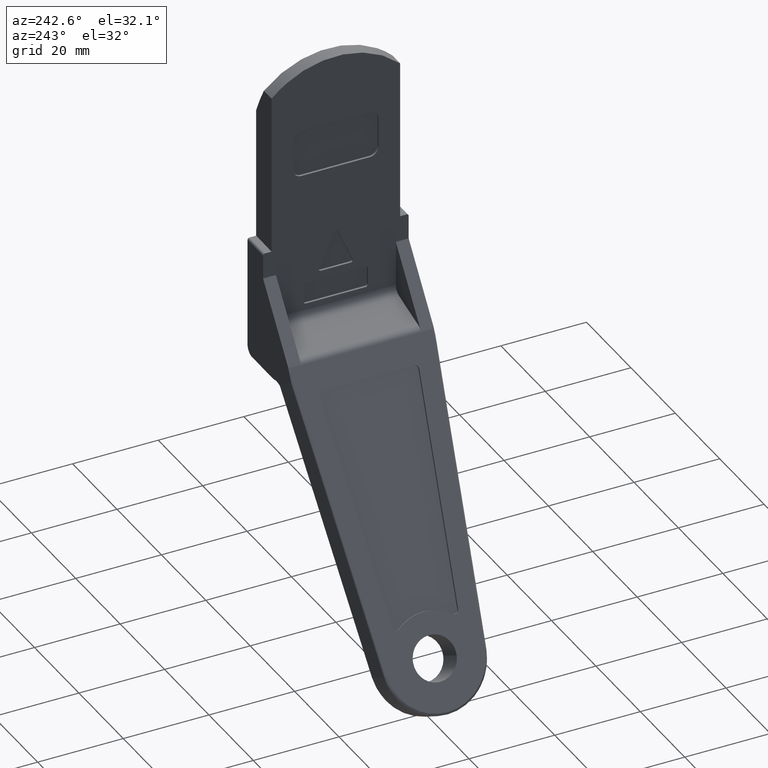
[diagram: clean part render]
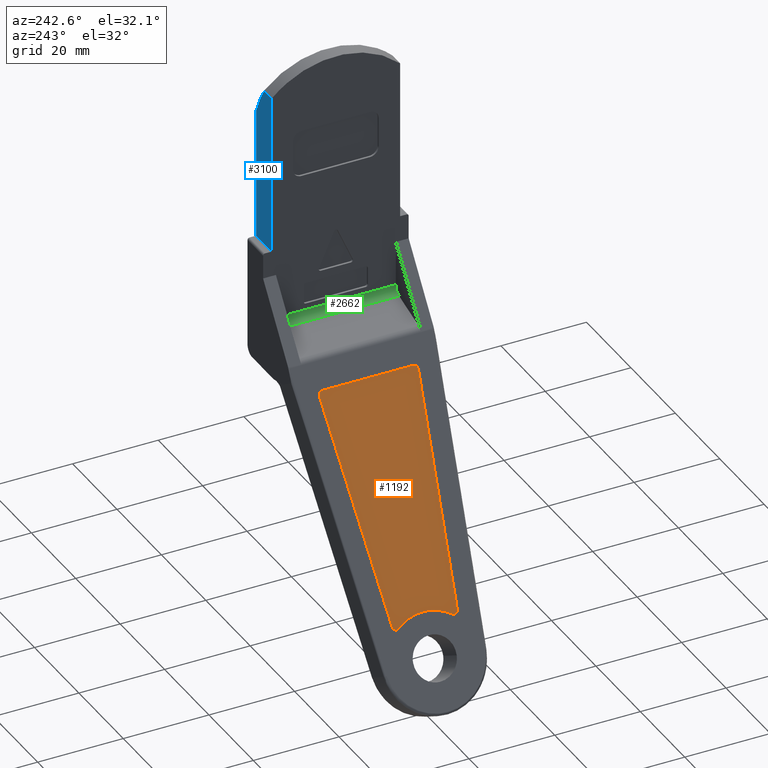
[diagram: same view with three faces highlighted in distinct colors, each labeled with its STEP entity id]
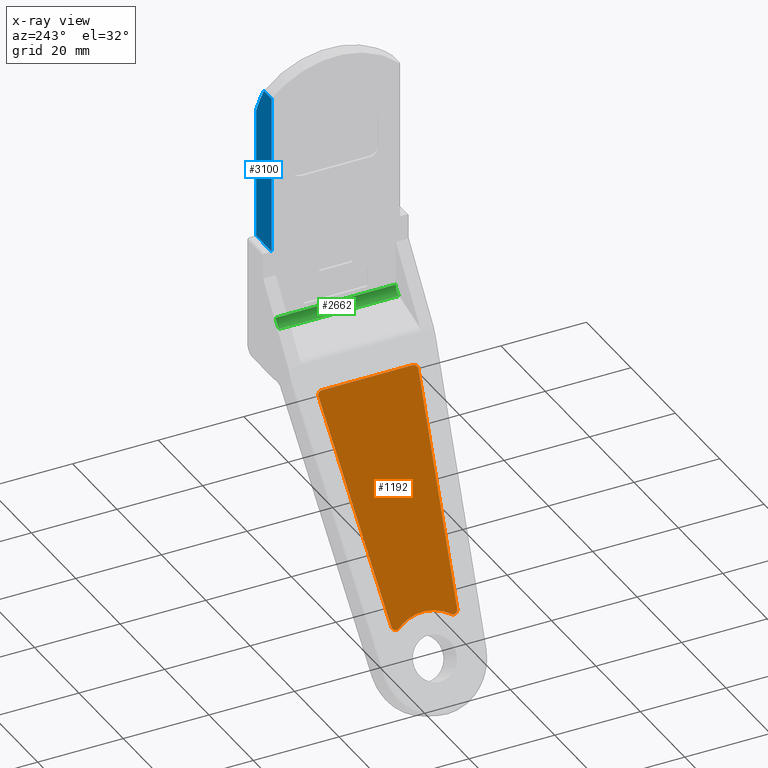
[diagram: x-ray of the same camera — body ghosted, the three highlighted faces saturated]
A machine part, auxiliary view with three faces highlighted in distinct colors.
The next image is the same camera in x-ray (body ghosted, the three faces saturated) — at least one of them is partly hidden behind the body in this view.
Their STEP definitions:

[orange] entity #1192 — the highlighted face is a freeform B-spline surface patch.
#1081=CARTESIAN_POINT('',(-12.823470612814781,-12.831469483781641,-47.086546977671112));
#1082=CARTESIAN_POINT('',(-41.574886471423383,-12.831469483781641,-96.885460034345584));
#1083=CARTESIAN_POINT('',(-12.823470612814781,12.831470318219241,-47.086546977671112));
#1084=CARTESIAN_POINT('',(-41.574886471423383,12.831470318219241,-96.885460034345570));
#1085=B_SPLINE_SURFACE_WITH_KNOTS('',1,1,((#1081,#1083),(#1082,#1084)),.UNSPECIFIED.,.F.,.F.,.U.,(2,2),(2,2),(0.0,57.502831717236980),(0.0,25.662939802000881),.UNSPECIFIED.);
#1086=CARTESIAN_POINT('',(-39.808490611509612,-7.702407870809769,-93.825972658693999));
#1087=VERTEX_POINT('',#1086);
#1088=CARTESIAN_POINT('',(-14.668430977618939,-11.663223935919200,-50.282112067463999));
#1089=VERTEX_POINT('',#1088);
#1090=CARTESIAN_POINT('',(-39.808490611509612,-7.702407870809769,-93.825972658693999));
#1091=CARTESIAN_POINT('',(-14.668430977618939,-11.663223935919200,-50.282112067463999));
#1092=QUASI_UNIFORM_CURVE('',1,(#1090,#1091),.UNSPECIFIED.,.F.,.U.);
#1093=EDGE_CURVE('',#1087,#1089,#1092,.T.);
#1094=ORIENTED_EDGE('',*,*,#1093,.T.);
#1095=CARTESIAN_POINT('',(-14.129165124597280,-10.666312319402360,-49.348076211242699));
#1096=VERTEX_POINT('',#1095);
#1097=CARTESIAN_POINT('',(-14.668430977619080,-11.663223935919200,-50.282112067463920));
#1098=CARTESIAN_POINT('',(-14.450391121722822,-11.697576112351761,-49.904455958976442));
#1099=CARTESIAN_POINT('',(-14.289778123160030,-11.400659548594509,-49.626266085109563));
#1100=CARTESIAN_POINT('',(-14.129165124597225,-11.103742984837258,-49.348076211242685));
#1101=CARTESIAN_POINT('',(-14.129165124597270,-10.666312319402360,-49.348076211242763));
#1109=(BOUNDED_CURVE()B_SPLINE_CURVE(2,(#1097,#1098,#1099,#1100,#1101),.UNSPECIFIED.,.F.,.U.)B_SPLINE_CURVE_WITH_KNOTS((3,2,3),(0.0,0.500000000000000,1.0),.UNSPECIFIED.)CURVE()GEOMETRIC_REPRESENTATION_ITEM()RATIONAL_B_SPLINE_CURVE((1.0,0.916180659824861,1.0,0.916180659824861,1.0))REPRESENTATION_ITEM(''));
#1110=EDGE_CURVE('',#1089,#1096,#1109,.T.);
#1111=ORIENTED_EDGE('',*,*,#1110,.T.);
#1112=CARTESIAN_POINT('',(-14.129165124599281,10.666312319401239,-49.348076211246401));
#1113=VERTEX_POINT('',#1112);
#1114=CARTESIAN_POINT('',(-14.129165124597280,-10.666312319402360,-49.348076211242699));
#1115=CARTESIAN_POINT('',(-14.129165124599281,10.666312319401239,-49.348076211246401));
#1116=QUASI_UNIFORM_CURVE('',1,(#1114,#1115),.UNSPECIFIED.,.F.,.U.);
#1117=EDGE_CURVE('',#1096,#1113,#1116,.T.);
#1118=ORIENTED_EDGE('',*,*,#1117,.T.);
#1119=CARTESIAN_POINT('',(-14.668430977621259,11.663223935917619,-50.282112067467899));
#1120=VERTEX_POINT('',#1119);
#1121=CARTESIAN_POINT('',(-14.129165124599171,10.666312319401239,-49.348076211246358));
#1122=CARTESIAN_POINT('',(-14.129165124599222,11.103742984836146,-49.348076211246443));
#1123=CARTESIAN_POINT('',(-14.289778123162090,11.400659548593261,-49.626266085113450));
#1124=CARTESIAN_POINT('',(-14.450391121724964,11.697576112350369,-49.904455958980442));
#1125=CARTESIAN_POINT('',(-14.668430977621210,11.663223935917610,-50.282112067467921));
#1133=(BOUNDED_CURVE()B_SPLINE_CURVE(2,(#1121,#1122,#1123,#1124,#1125),.UNSPECIFIED.,.F.,.U.)B_SPLINE_CURVE_WITH_KNOTS((3,2,3),(0.0,0.500000000000000,1.0),.UNSPECIFIED.)CURVE()GEOMETRIC_REPRESENTATION_ITEM()RATIONAL_B_SPLINE_CURVE((1.0,0.916180659824858,1.0,0.916180659824858,1.0))REPRESENTATION_ITEM(''));
#1134=EDGE_CURVE('',#1113,#1120,#1133,.T.);
#1135=ORIENTED_EDGE('',*,*,#1134,.T.);
#1136=CARTESIAN_POINT('',(-39.808490611511253,7.702407870787360,-93.825972658696799));
#1137=VERTEX_POINT('',#1136);
#1138=CARTESIAN_POINT('',(-14.668430977621259,11.663223935917619,-50.282112067467899));
#1139=CARTESIAN_POINT('',(-39.808490611511253,7.702407870787360,-93.825972658696799));
#1140=QUASI_UNIFORM_CURVE('',1,(#1138,#1139),.UNSPECIFIED.,.F.,.U.);
#1141=EDGE_CURVE('',#1120,#1137,#1140,.T.);
#1142=ORIENTED_EDGE('',*,*,#1141,.T.);
#1143=CARTESIAN_POINT('',(-40.165582973588862,6.095905685699591,-94.444474772810210));
#1144=VERTEX_POINT('',#1143);
#1145=CARTESIAN_POINT('',(-39.808490611511203,7.702407870787409,-93.825972658696827));
#1146=CARTESIAN_POINT('',(-40.105204792196659,7.655660555517405,-94.339896694970449));
#1147=CARTESIAN_POINT('',(-40.226111135611312,7.111721996438420,-94.549312624722077));
#1148=CARTESIAN_POINT('',(-40.347017479025943,6.567783437359437,-94.758728554473720));
#1149=CARTESIAN_POINT('',(-40.165582973588819,6.095905685699527,-94.444474772810310));
#1157=(BOUNDED_CURVE()B_SPLINE_CURVE(2,(#1145,#1146,#1147,#1148,#1149),.UNSPECIFIED.,.F.,.U.)B_SPLINE_CURVE_WITH_KNOTS((3,2,3),(0.0,0.500000000000000,1.0),.UNSPECIFIED.)CURVE()GEOMETRIC_REPRESENTATION_ITEM()RATIONAL_B_SPLINE_CURVE((1.0,0.859282053409342,1.0,0.859282053409342,1.0))REPRESENTATION_ITEM(''));
#1158=EDGE_CURVE('',#1137,#1144,#1157,.T.);
#1159=ORIENTED_EDGE('',*,*,#1158,.T.);
#1160=CARTESIAN_POINT('',(-40.165582973587497,-6.095905685722171,-94.444474772808206));
#1161=VERTEX_POINT('',#1160);
#1162=CARTESIAN_POINT('',(-40.165582973587561,-6.095905685722167,-94.444474772808178));
#1163=CARTESIAN_POINT('',(-37.821739405233657,-1.036742E-011,-90.384818627423840));
#1164=CARTESIAN_POINT('',(-40.165582973588812,6.095905685699518,-94.444474772810338));
#1172=(BOUNDED_CURVE()B_SPLINE_CURVE(2,(#1162,#1163,#1164),.UNSPECIFIED.,.F.,.U.)CURVE()GEOMETRIC_REPRESENTATION_ITEM()QUASI_UNIFORM_CURVE()RATIONAL_B_SPLINE_CURVE((1.0,0.792716430200095,1.0))REPRESENTATION_ITEM(''));
#1173=EDGE_CURVE('',#1161,#1144,#1172,.T.);
#1174=ORIENTED_EDGE('',*,*,#1173,.F.);
#1175=CARTESIAN_POINT('',(-40.165582973587732,-6.095905685722164,-94.444474772808078));
#1176=CARTESIAN_POINT('',(-40.347017479024750,-6.567783437382258,-94.758728554471290));
#1177=CARTESIAN_POINT('',(-40.226111135609983,-7.111721996461149,-94.549312624719434));
#1178=CARTESIAN_POINT('',(-40.105204792195202,-7.655660555540041,-94.339896694967578));
#1179=CARTESIAN_POINT('',(-39.808490611509733,-7.702407870809767,-93.825972658693928));
#1187=(BOUNDED_CURVE()B_SPLINE_CURVE(2,(#1175,#1176,#1177,#1178,#1179),.UNSPECIFIED.,.F.,.U.)B_SPLINE_CURVE_WITH_KNOTS((3,2,3),(0.0,0.500000000000000,1.0),.UNSPECIFIED.)CURVE()GEOMETRIC_REPRESENTATION_ITEM()RATIONAL_B_SPLINE_CURVE((1.0,0.859282053409341,1.0,0.859282053409341,1.0))REPRESENTATION_ITEM(''));
#1188=EDGE_CURVE('',#1161,#1087,#1187,.T.);
#1189=ORIENTED_EDGE('',*,*,#1188,.T.);
#1190=EDGE_LOOP('',(#1094,#1111,#1118,#1135,#1142,#1159,#1174,#1189));
#1191=FACE_OUTER_BOUND('',#1190,.T.);
#1192=ADVANCED_FACE('',(#1191),#1085,.F.);

[blue] entity #3100 — the highlighted face is a freeform B-spline surface patch.
#2895=CARTESIAN_POINT('',(6.999999999999901,15.0,-21.999999999891902));
#2896=VERTEX_POINT('',#2895);
#2903=CARTESIAN_POINT('',(0.0,15.0,-21.999999999891902));
#2904=VERTEX_POINT('',#2903);
#2910=CARTESIAN_POINT('',(6.999999999999901,15.0,-21.999999999891902));
#2911=CARTESIAN_POINT('',(0.0,15.0,-21.999999999891902));
#2912=QUASI_UNIFORM_CURVE('',1,(#2910,#2911),.UNSPECIFIED.,.F.,.U.);
#2913=EDGE_CURVE('',#2896,#2904,#2912,.T.);
#2960=CARTESIAN_POINT('',(3.500000000194680,15.0,15.402921800857500));
#2961=VERTEX_POINT('',#2960);
#2994=CARTESIAN_POINT('',(6.999999999999890,15.0,8.676950673318538));
#2995=VERTEX_POINT('',#2994);
#3011=CARTESIAN_POINT('',(3.500000000194684,15.0,15.402921800857509));
#3012=CARTESIAN_POINT('',(3.824746289692618,15.0,14.862707574802750));
#3013=CARTESIAN_POINT('',(4.143518249869392,15.0,14.318667180658750));
#3014=CARTESIAN_POINT('',(4.766307243732900,15.0,13.221136824752270));
#3015=CARTESIAN_POINT('',(5.070333198622839,15.0,12.667652576438300));
#3016=CARTESIAN_POINT('',(5.659975148826365,15.0,11.548893702000781));
#3017=CARTESIAN_POINT('',(5.945603501924627,15.0,10.983626990231929));
#3018=CARTESIAN_POINT('',(6.356614550278786,15.0,10.124563196261080));
#3019=CARTESIAN_POINT('',(6.490614117909919,15.0,9.836505076368587));
#3020=CARTESIAN_POINT('',(6.751018840966748,15.0,9.258549258151566));
#3021=CARTESIAN_POINT('',(6.877546054212417,15.000000000000011,8.968399411156987));
#3022=CARTESIAN_POINT('',(6.999999999999914,15.0,8.676950673318546));
#3023=B_SPLINE_CURVE_WITH_KNOTS('',3,(#3011,#3012,#3013,#3014,#3015,#3016,#3017,#3018,#3019,#3020,#3021,#3022),.UNSPECIFIED.,.F.,.U.,(4,2,2,2,2,4),(0.0,0.250000000000000,0.500000000000000,0.750000000000000,0.875000000000000,1.0),.UNSPECIFIED.);
#3024=EDGE_CURVE('',#2961,#2995,#3023,.T.);
#3041=CARTESIAN_POINT('',(6.999999999999901,15.0,-21.999999999891902));
#3042=CARTESIAN_POINT('',(6.999999999999890,15.0,8.676950673318538));
#3043=QUASI_UNIFORM_CURVE('',1,(#3041,#3042),.UNSPECIFIED.,.F.,.U.);
#3044=EDGE_CURVE('',#2896,#2995,#3043,.T.);
#3078=CARTESIAN_POINT('',(-0.349649986432637,15.0,17.271197672310809));
#3079=CARTESIAN_POINT('',(-0.349649986432637,15.0,-23.868276874569759));
#3080=CARTESIAN_POINT('',(7.349650174187168,15.0,17.271197672310809));
#3081=CARTESIAN_POINT('',(7.349650174187168,15.0,-23.868276874569759));
#3082=B_SPLINE_SURFACE_WITH_KNOTS('',1,1,((#3078,#3080),(#3079,#3081)),.UNSPECIFIED.,.F.,.F.,.U.,(2,2),(2,2),(0.0,41.139474546880571),(0.0,7.699300160619806),.UNSPECIFIED.);
#3083=CARTESIAN_POINT('',(0.0,15.0,15.402921800857500));
#3084=VERTEX_POINT('',#3083);
#3085=CARTESIAN_POINT('',(3.500000000194680,15.0,15.402921800857500));
#3086=CARTESIAN_POINT('',(0.0,15.0,15.402921800857500));
#3087=QUASI_UNIFORM_CURVE('',1,(#3085,#3086),.UNSPECIFIED.,.F.,.U.);
#3088=EDGE_CURVE('',#2961,#3084,#3087,.T.);
#3089=ORIENTED_EDGE('',*,*,#3088,.F.);
#3090=ORIENTED_EDGE('',*,*,#3024,.T.);
#3091=ORIENTED_EDGE('',*,*,#3044,.F.);
#3092=ORIENTED_EDGE('',*,*,#2913,.T.);
#3093=CARTESIAN_POINT('',(0.0,15.0,-21.999999999891902));
#3094=CARTESIAN_POINT('',(0.0,15.0,15.402921800857500));
#3095=QUASI_UNIFORM_CURVE('',1,(#3093,#3094),.UNSPECIFIED.,.F.,.U.);
#3096=EDGE_CURVE('',#2904,#3084,#3095,.T.);
#3097=ORIENTED_EDGE('',*,*,#3096,.T.);
#3098=EDGE_LOOP('',(#3089,#3090,#3091,#3092,#3097));
#3099=FACE_OUTER_BOUND('',#3098,.T.);
#3100=ADVANCED_FACE('',(#3099),#3082,.F.);

[green] entity #2662 — the highlighted face is a freeform B-spline surface patch.
#2514=CARTESIAN_POINT('',(0.0,-14.0,-38.470898426035099));
#2515=VERTEX_POINT('',#2514);
#2521=CARTESIAN_POINT('',(-1.475604726710656,-14.0,-40.400926818922599));
#2522=VERTEX_POINT('',#2521);
#2523=CARTESIAN_POINT('',(-1.475604726710664,-14.0,-40.400926818922571));
#2524=CARTESIAN_POINT('',(0.0,-14.000000000000004,-40.000000000031164));
#2525=CARTESIAN_POINT('',(0.0,-14.0,-38.470898426035099));
#2533=(BOUNDED_CURVE()B_SPLINE_CURVE(2,(#2523,#2524,#2525),.UNSPECIFIED.,.F.,.U.)CURVE()GEOMETRIC_REPRESENTATION_ITEM()QUASI_UNIFORM_CURVE()RATIONAL_B_SPLINE_CURVE((1.0,0.794417282240470,1.0))REPRESENTATION_ITEM(''));
#2534=EDGE_CURVE('',#2522,#2515,#2533,.T.);
#2588=CARTESIAN_POINT('',(-1.475604726710656,14.0,-40.400926818922599));
#2589=VERTEX_POINT('',#2588);
#2595=CARTESIAN_POINT('',(0.0,14.0,-38.470898426035099));
#2596=VERTEX_POINT('',#2595);
#2597=CARTESIAN_POINT('',(-1.475604726710664,14.0,-40.400926818922571));
#2598=CARTESIAN_POINT('',(0.0,14.000000000000004,-40.000000000031164));
#2599=CARTESIAN_POINT('',(0.0,14.0,-38.470898426035099));
#2607=(BOUNDED_CURVE()B_SPLINE_CURVE(2,(#2597,#2598,#2599),.UNSPECIFIED.,.F.,.U.)CURVE()GEOMETRIC_REPRESENTATION_ITEM()QUASI_UNIFORM_CURVE()RATIONAL_B_SPLINE_CURVE((1.0,0.794417282240470,1.0))REPRESENTATION_ITEM(''));
#2608=EDGE_CURVE('',#2589,#2596,#2607,.T.);
#2624=CARTESIAN_POINT('',(-1.475604726710656,14.0,-40.400926818922599));
#2625=CARTESIAN_POINT('',(-1.475604726710656,-14.0,-40.400926818922599));
#2626=QUASI_UNIFORM_CURVE('',1,(#2624,#2625),.UNSPECIFIED.,.F.,.U.);
#2627=EDGE_CURVE('',#2589,#2522,#2626,.T.);
#2638=CARTESIAN_POINT('',(-0.000076153871658,14.699999999999999,-38.453445355038362));
#2639=CARTESIAN_POINT('',(-0.000076153871658,-14.717499999999999,-38.453445355038362));
#2640=CARTESIAN_POINT('',(0.014057064351726,14.700000000000008,-40.072951753239032));
#2641=CARTESIAN_POINT('',(0.014057064351726,-14.717499999999999,-40.072951753239032));
#2642=CARTESIAN_POINT('',(-1.567120772123793,14.699999999999999,-40.423490440274968));
#2643=CARTESIAN_POINT('',(-1.567120772123793,-14.717499999999999,-40.423490440274968));
#2651=(BOUNDED_SURFACE()B_SPLINE_SURFACE(1,2,((#2638,#2640,#2642),(#2639,#2641,#2643)),.UNSPECIFIED.,.F.,.F.,.U.)B_SPLINE_SURFACE_WITH_KNOTS((2,2),(3,3),(0.0,29.417500000000011),(0.0,2.832948580245588),.UNSPECIFIED.)GEOMETRIC_REPRESENTATION_ITEM()RATIONAL_B_SPLINE_SURFACE(((1.0,0.777145961456971,1.0),(1.0,0.777145961456971,1.0)))REPRESENTATION_ITEM('')SURFACE());
#2652=ORIENTED_EDGE('',*,*,#2534,.T.);
#2653=CARTESIAN_POINT('',(0.0,14.0,-38.470898426035099));
#2654=CARTESIAN_POINT('',(0.0,-14.0,-38.470898426035099));
#2655=QUASI_UNIFORM_CURVE('',1,(#2653,#2654),.UNSPECIFIED.,.F.,.U.);
#2656=EDGE_CURVE('',#2596,#2515,#2655,.T.);
#2657=ORIENTED_EDGE('',*,*,#2656,.F.);
#2658=ORIENTED_EDGE('',*,*,#2608,.F.);
#2659=ORIENTED_EDGE('',*,*,#2627,.T.);
#2660=EDGE_LOOP('',(#2652,#2657,#2658,#2659));
#2661=FACE_OUTER_BOUND('',#2660,.T.);
#2662=ADVANCED_FACE('',(#2661),#2651,.F.);